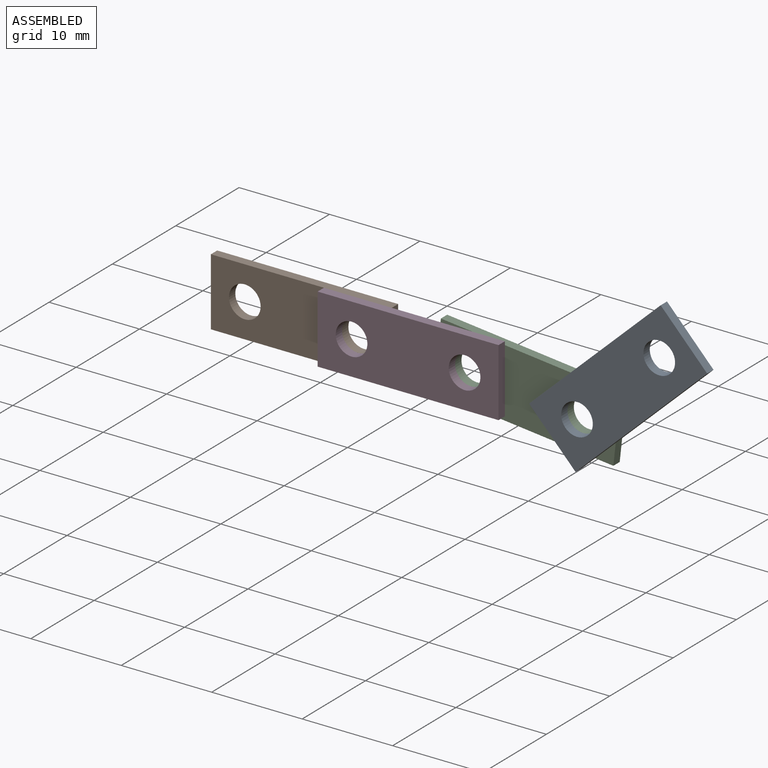
[diagram: assembled view]
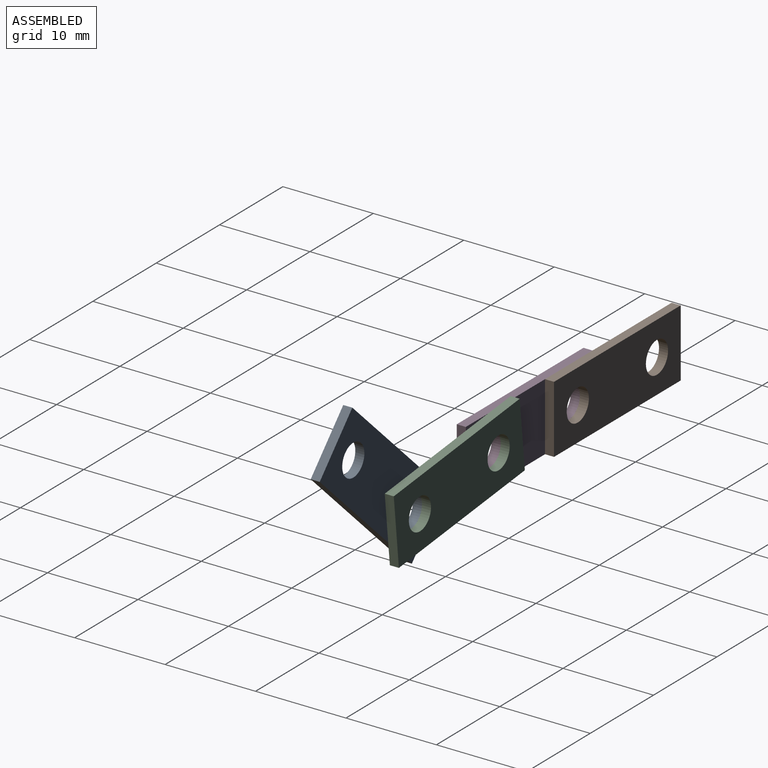
[diagram: assembled view, second angle]
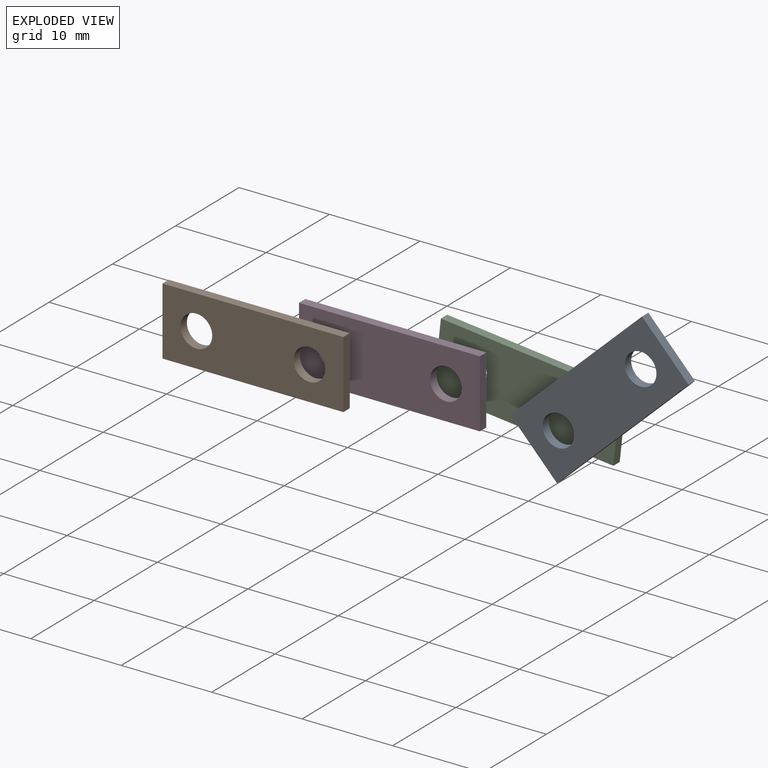
[diagram: exploded view]
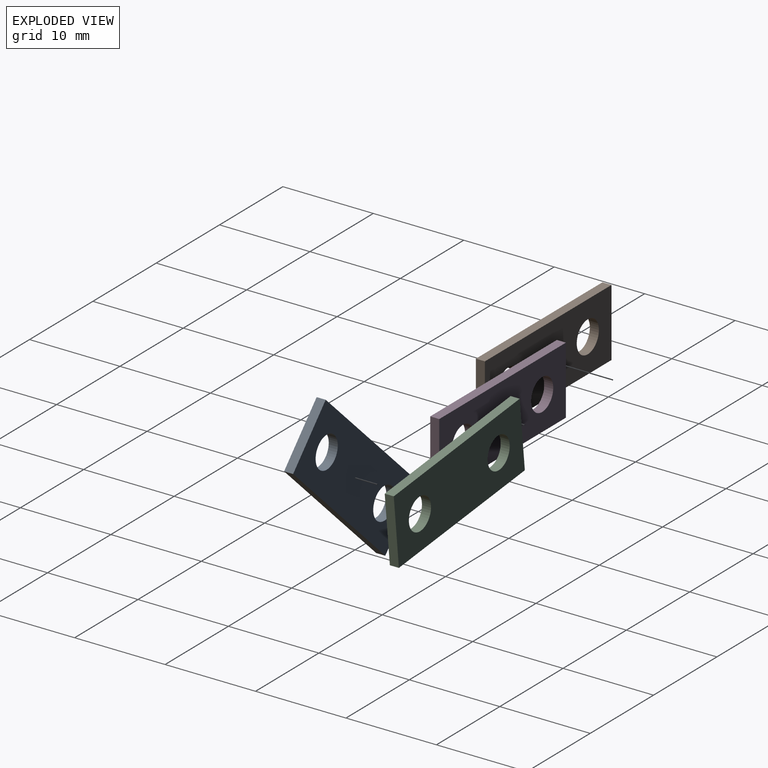
[diagram: exploded view, second angle]
ASSEMBLY  parts=4 mates=3
PART A: 8 faces, bbox 20x1x7.5 mm
  f0: plane 20x1mm, normal (0,0,1), area 20mm2, adj f1,f3,f4,f5
  f1: plane 7.5x1mm, normal (-1,0,0), area 7.5mm2, adj f0,f2,f3,f4
  f2: plane 20x1mm, normal (0,0,-1), area 20mm2, adj f1,f3,f4,f5
  f3: plane 20x7.5mm, normal (0,-1,0), area 130.8mm2, adj f0,f1,f2,f5,f6,f7
  f4: plane 20x7.5mm, normal (0,1,0), area 130.8mm2, adj f0,f1,f2,f5,f6,f7
  f5: plane 7.5x1mm, normal (1,0,0), area 7.5mm2, adj f0,f2,f3,f4
  f6: cylinder r=1.75mm len=3.5mm, axis (0,-1,0), area 11mm2, adj f3,f4
  f7: cylinder r=1.75mm len=3.5mm, axis (0,-1,0), area 11mm2, adj f3,f4
PART B: 8 faces, bbox 20x1x7.5 mm
  f0: plane 20x7.5mm, normal (0,-1,0), area 130.8mm2, adj f1,f3,f4,f5,f6,f7
  f1: plane 7.5x1mm, normal (1,0,0), area 7.5mm2, adj f0,f2,f4,f5
  f2: plane 20x7.5mm, normal (0,1,0), area 130.8mm2, adj f1,f3,f4,f5,f6,f7
  f3: plane 7.5x1mm, normal (-1,0,0), area 7.5mm2, adj f0,f2,f4,f5
  f4: plane 20x1mm, normal (0,0,1), area 20mm2, adj f0,f1,f2,f3
  f5: plane 20x1mm, normal (0,0,-1), area 20mm2, adj f0,f1,f2,f3
  f6: cylinder r=1.75mm len=3.5mm, axis (0,-1,0), area 11mm2, adj f0,f2
  f7: cylinder r=1.75mm len=3.5mm, axis (0,-1,0), area 11mm2, adj f0,f2
PART C: same geometry as B
PART D: same geometry as A
PLACE A rot(axis=(0,-1,0),43.3deg) t=(29.2,0,-4.62)mm
PLACE B at identity
PLACE C rot(axis=(0,1,0),6.2deg) t=(24.56,0,-0.65)mm
PLACE D at identity fixed
MATE revolute B.f6 <-> D.f6  axis (0,-1,0) through (6.25,-3,3.75)mm
MATE revolute A.f6 <-> C.f6  axis (0,1,0) through (31.18,-3,2.4)mm
MATE revolute C.f7 <-> D.f7  axis (0,-1,0) through (18.75,-3,3.75)mm
